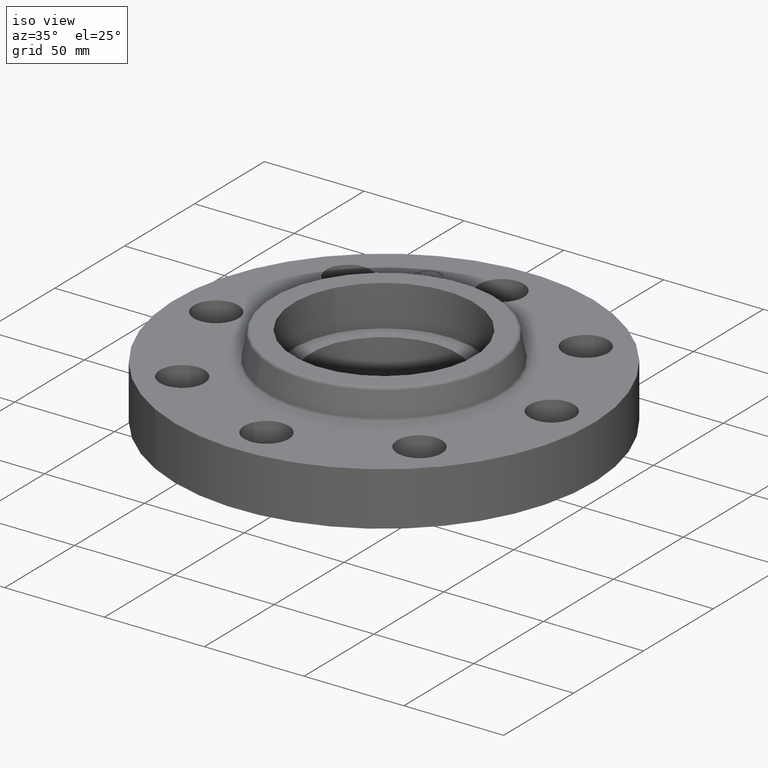
[diagram: clean part render]
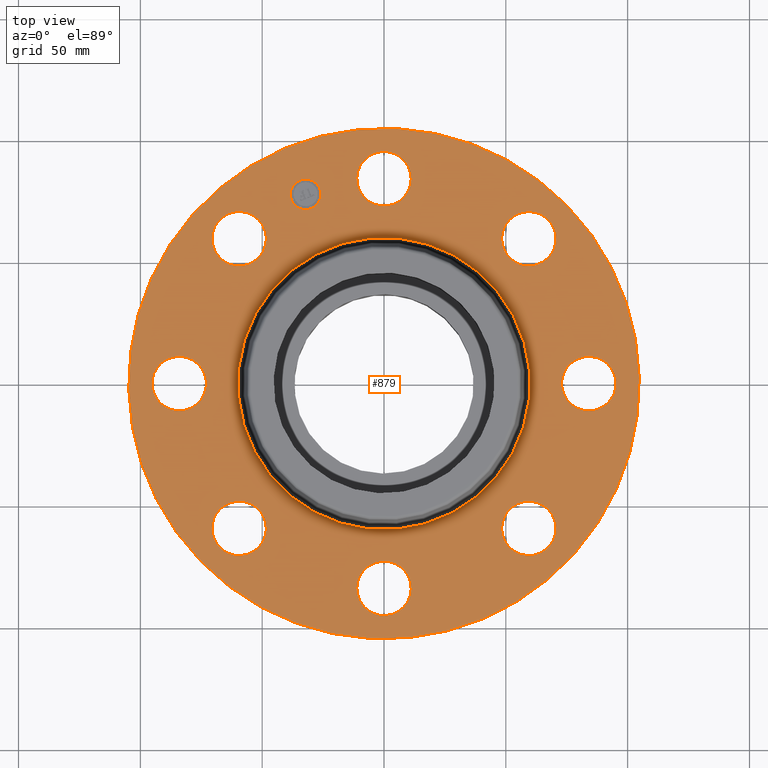
[diagram: tour spotlight — one face highlighted and labeled with its STEP entity id]
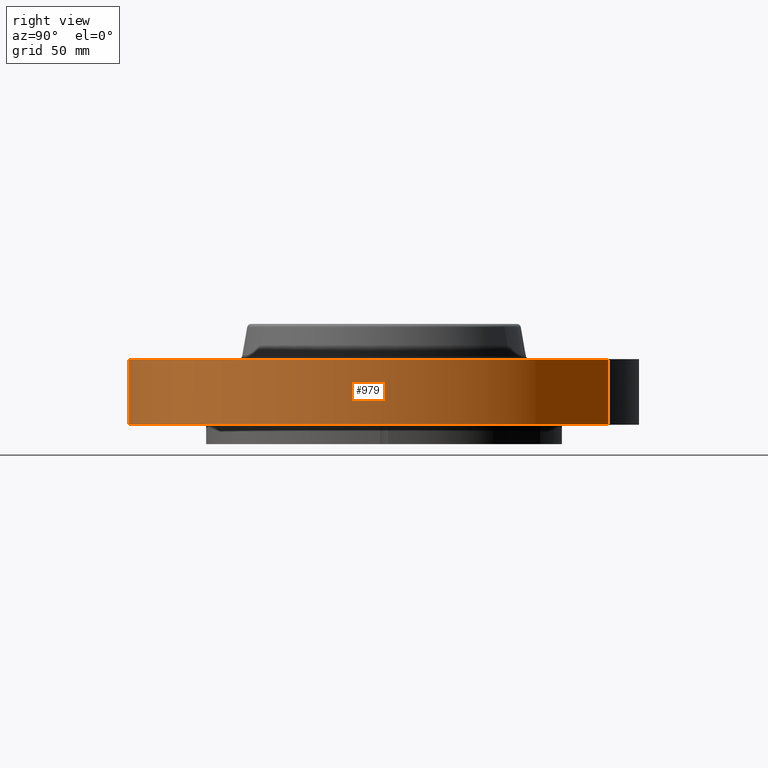
[diagram: tour spotlight — one face highlighted and labeled with its STEP entity id]
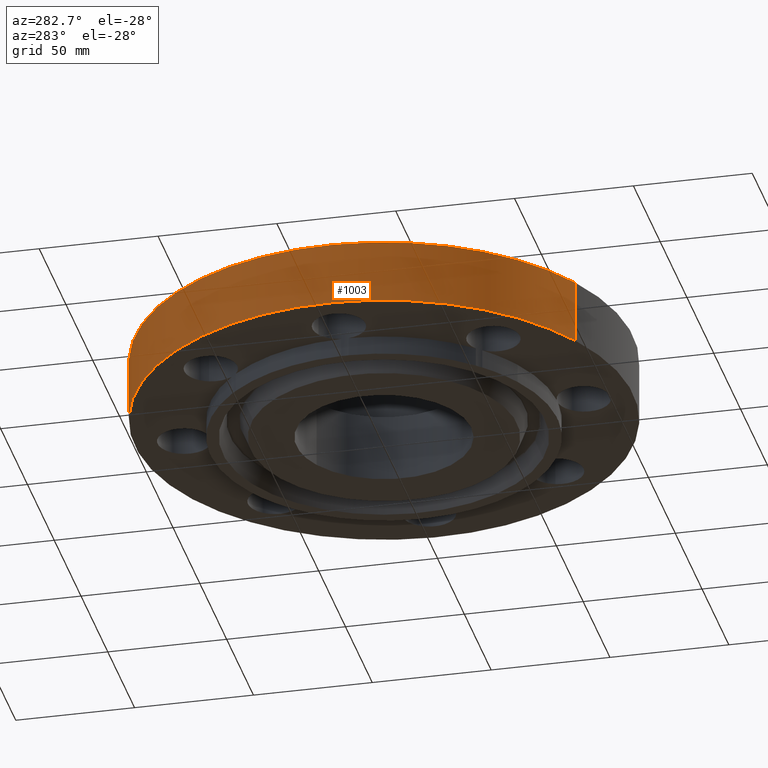
[diagram: tour spotlight — one face highlighted and labeled with its STEP entity id]
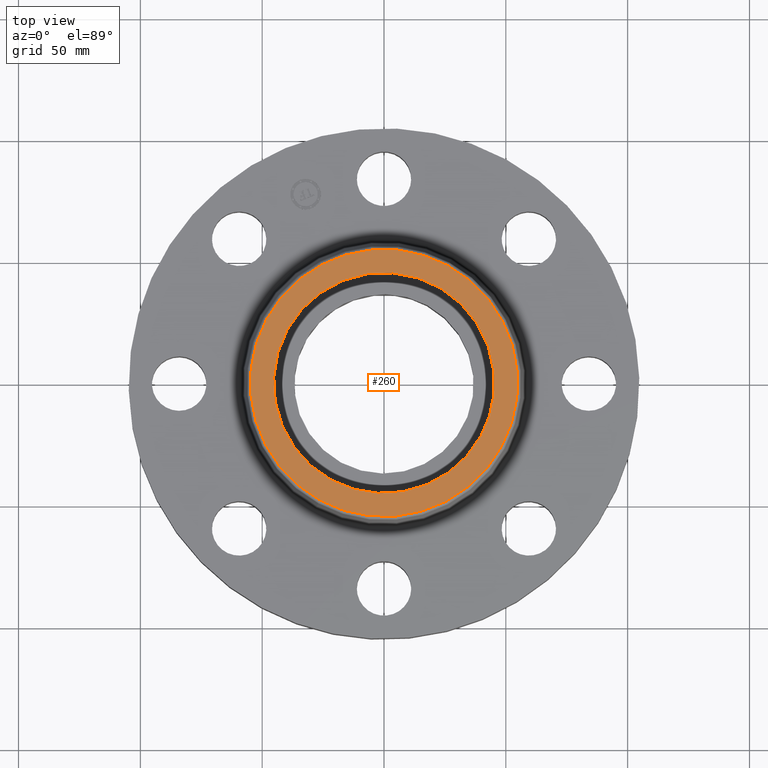
[diagram: tour spotlight — one face highlighted and labeled with its STEP entity id]
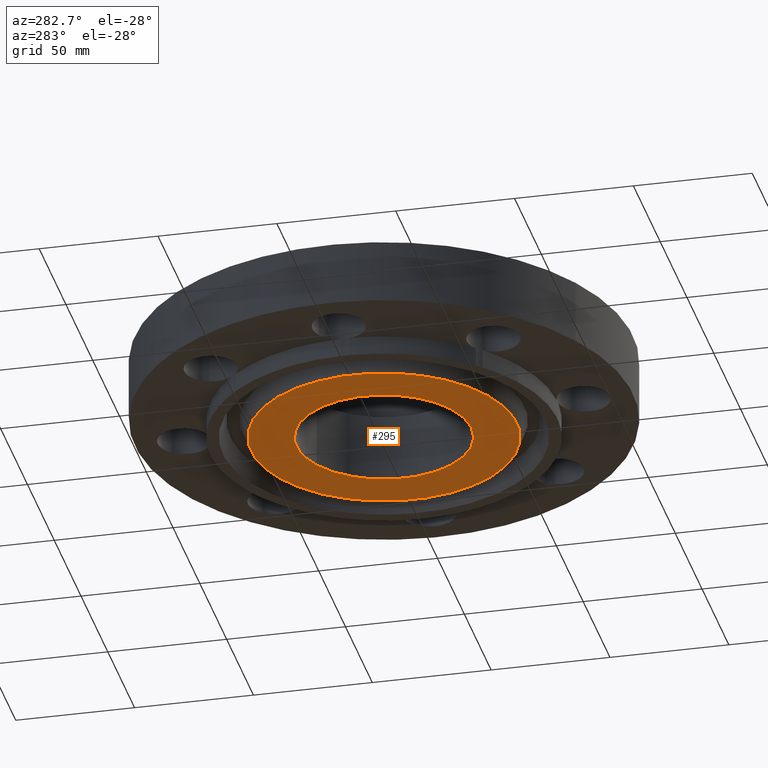
[diagram: tour spotlight — one face highlighted and labeled with its STEP entity id]
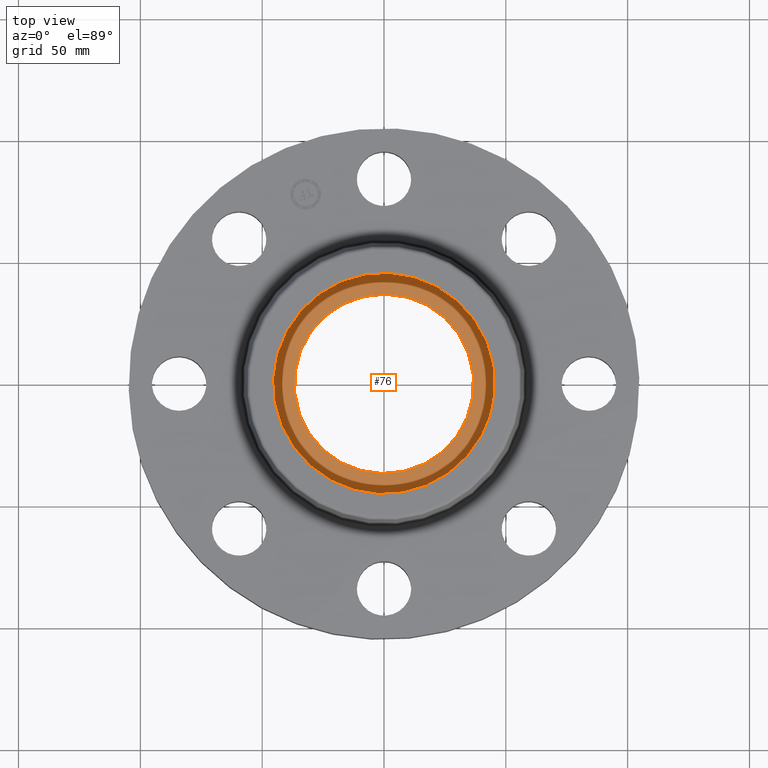
[diagram: tour spotlight — one face highlighted and labeled with its STEP entity id]
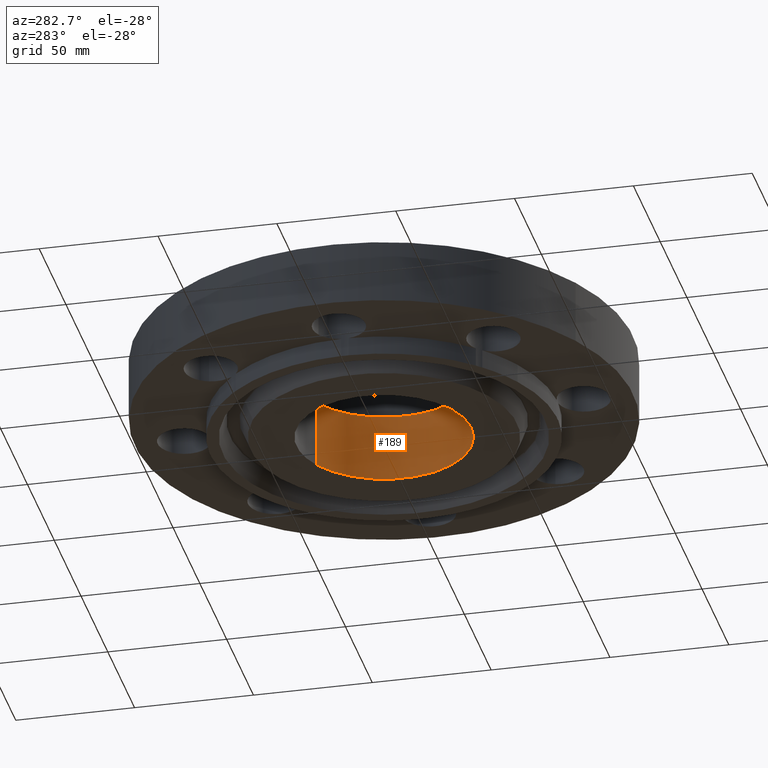
[diagram: tour spotlight — one face highlighted and labeled with its STEP entity id]
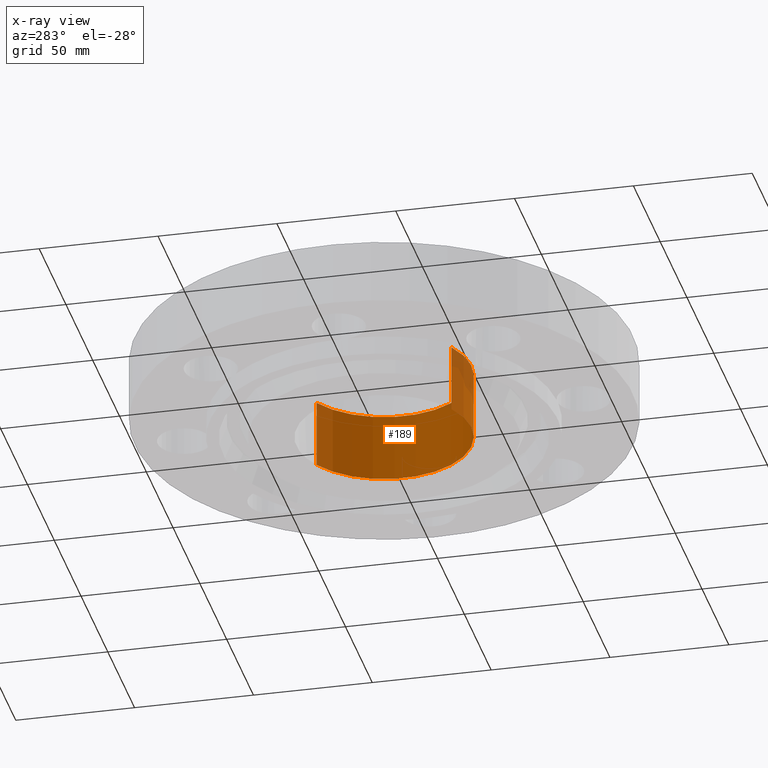
[diagram: x-ray of the same camera — body ghosted, this tour face saturated]
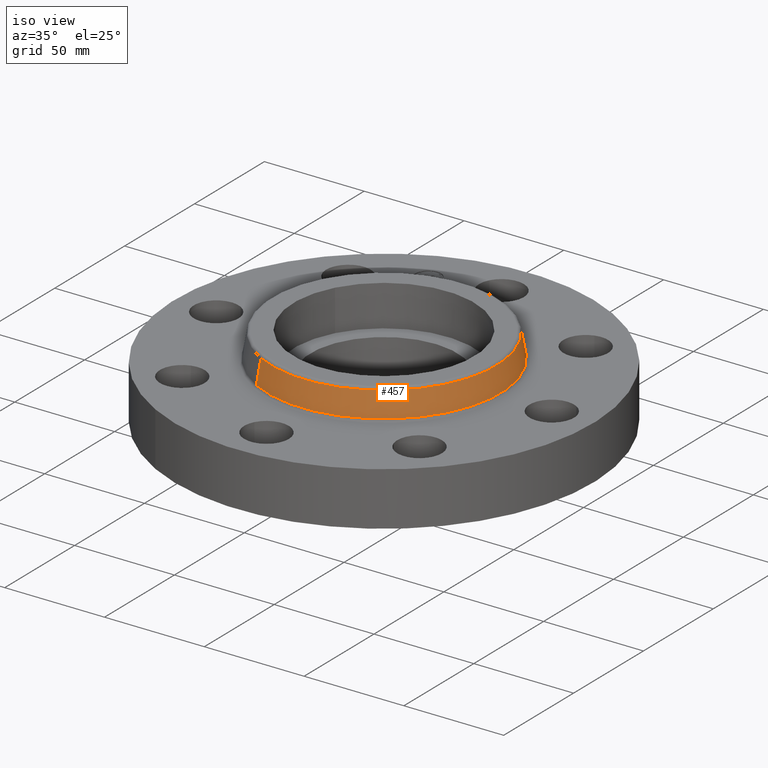
[diagram: tour spotlight — one face highlighted and labeled with its STEP entity id]
A machine part: a face-by-face anatomy tour. The part has 438 B-rep faces; the first image is the clean iso view, then the 8 largest visible faces are spotlighted one at a time (largest first), each with its STEP entity span.

Face 1 — top view, entity #879. In plain terms, the highlighted planar face has unit normal (0, 0, -1).
Definition (entity closure, byte-faithful):
#558=AXIS2_PLACEMENT_3D('Circle Axis2P3D',#556,#557,$) ;
#596=AXIS2_PLACEMENT_3D('Circle Axis2P3D',#594,#595,$) ;
#693=AXIS2_PLACEMENT_3D('Plane Axis2P3D',#690,#691,#692) ;
#697=AXIS2_PLACEMENT_3D('Circle Axis2P3D',#695,#696,$) ;
#706=AXIS2_PLACEMENT_3D('Circle Axis2P3D',#704,#705,$) ;
#715=AXIS2_PLACEMENT_3D('Circle Axis2P3D',#713,#714,$) ;
#724=AXIS2_PLACEMENT_3D('Circle Axis2P3D',#722,#723,$) ;
#737=AXIS2_PLACEMENT_3D('Circle Axis2P3D',#735,#736,$) ;
#746=AXIS2_PLACEMENT_3D('Circle Axis2P3D',#744,#745,$) ;
#755=AXIS2_PLACEMENT_3D('Circle Axis2P3D',#753,#754,$) ;
#764=AXIS2_PLACEMENT_3D('Circle Axis2P3D',#762,#763,$) ;
#773=AXIS2_PLACEMENT_3D('Circle Axis2P3D',#771,#772,$) ;
#782=AXIS2_PLACEMENT_3D('Circle Axis2P3D',#780,#781,$) ;
#791=AXIS2_PLACEMENT_3D('Circle Axis2P3D',#789,#790,$) ;
#800=AXIS2_PLACEMENT_3D('Circle Axis2P3D',#798,#799,$) ;
#809=AXIS2_PLACEMENT_3D('Circle Axis2P3D',#807,#808,$) ;
#818=AXIS2_PLACEMENT_3D('Circle Axis2P3D',#816,#817,$) ;
#827=AXIS2_PLACEMENT_3D('Circle Axis2P3D',#825,#826,$) ;
#836=AXIS2_PLACEMENT_3D('Circle Axis2P3D',#834,#835,$) ;
#845=AXIS2_PLACEMENT_3D('Circle Axis2P3D',#843,#844,$) ;
#854=AXIS2_PLACEMENT_3D('Circle Axis2P3D',#852,#853,$) ;
#863=AXIS2_PLACEMENT_3D('Circle Axis2P3D',#861,#862,$) ;
#872=AXIS2_PLACEMENT_3D('Circle Axis2P3D',#870,#871,$) ;
#556=CARTESIAN_POINT('Axis2P3D Location',(0.,0.,1.06)) ;
#560=CARTESIAN_POINT('Vertex',(1.13161014174,2.07139847022,1.06)) ;
#562=CARTESIAN_POINT('Vertex',(-1.13161014174,-2.07139847022,1.06)) ;
#594=CARTESIAN_POINT('Axis2P3D Location',(0.,0.,1.06)) ;
#690=CARTESIAN_POINT('Axis2P3D Location',(0.,4.12500000002,1.06)) ;
#695=CARTESIAN_POINT('Axis2P3D Location',(-1.1189649382E-015,5.33354637795E-012,1.06)) ;
#699=CARTESIAN_POINT('Vertex',(1.97763034678,3.62002806783,1.06)) ;
#701=CARTESIAN_POINT('Vertex',(-1.97763034675,-3.62002806781,1.06000000003)) ;
#704=CARTESIAN_POINT('Axis2P3D Location',(1.1189649382E-015,5.33466534289E-012,1.06)) ;
#713=CARTESIAN_POINT('Axis2P3D Location',(-6.99907323699E-012,3.30999999999,1.06)) ;
#717=CARTESIAN_POINT('Vertex',(-0.386136327233,3.520947237,1.05999999999)) ;
#719=CARTESIAN_POINT('Vertex',(0.386136327236,3.09905276303,1.05999999999)) ;
#722=CARTESIAN_POINT('Axis2P3D Location',(6.99907323699E-012,3.31000000002,1.06)) ;
#735=CARTESIAN_POINT('Axis2P3D Location',(2.34052344574,2.34052344574,1.06)) ;
#739=CARTESIAN_POINT('Vertex',(2.46440083947,1.91832160856,1.06)) ;
#741=CARTESIAN_POINT('Vertex',(2.21664605204,2.76272528294,1.05999999999)) ;
#744=CARTESIAN_POINT('Axis2P3D Location',(2.34052344574,2.34052344574,1.06)) ;
#753=CARTESIAN_POINT('Axis2P3D Location',(3.31000000001,-1.66501982805E-012,1.06)) ;
#757=CARTESIAN_POINT('Vertex',(3.09905276303,-0.386136327236,1.05999999999)) ;
#759=CARTESIAN_POINT('Vertex',(3.520947237,0.386136327233,1.05999999999)) ;
#762=CARTESIAN_POINT('Axis2P3D Location',(3.30999999999,1.23332315489E-011,1.06)) ;
#771=CARTESIAN_POINT('Axis2P3D Location',(2.34052344574,-2.34052344573,1.06)) ;
#775=CARTESIAN_POINT('Vertex',(1.91832160856,-2.46440083947,1.06)) ;
#777=CARTESIAN_POINT('Vertex',(2.76272528294,-2.21664605204,1.05999999999)) ;
#780=CARTESIAN_POINT('Axis2P3D Location',(2.34052344574,-2.34052344573,1.06)) ;
#789=CARTESIAN_POINT('Axis2P3D Location',(1.74838271595E-017,-3.31000000003,1.06)) ;
#793=CARTESIAN_POINT('Vertex',(-0.386136327236,-3.09905276303,1.05999999999)) ;
#795=CARTESIAN_POINT('Vertex',(0.386136327233,-3.520947237,1.05999999999)) ;
#798=CARTESIAN_POINT('Axis2P3D Location',(-1.74838271595E-017,-3.31000000003,1.06)) ;
#807=CARTESIAN_POINT('Axis2P3D Location',(-2.34052344576,-2.34052344574,1.06)) ;
#811=CARTESIAN_POINT('Vertex',(-2.46440083947,-1.91832160855,1.06)) ;
#813=CARTESIAN_POINT('Vertex',(-2.21664605204,-2.76272528294,1.05999999999)) ;
#816=CARTESIAN_POINT('Axis2P3D Location',(-2.34052344574,-2.34052344573,1.06)) ;
#825=CARTESIAN_POINT('Axis2P3D Location',(-3.31000000001,1.23332315489E-011,1.06)) ;
#829=CARTESIAN_POINT('Vertex',(-3.09905276303,0.386136327236,1.05999999999)) ;
#831=CARTESIAN_POINT('Vertex',(-3.520947237,-0.386136327233,1.05999999999)) ;
#834=CARTESIAN_POINT('Axis2P3D Location',(-3.30999999999,-1.66501982805E-012,1.06)) ;
#843=CARTESIAN_POINT('Axis2P3D Location',(-2.34052344574,2.34052344573,1.06)) ;
#847=CARTESIAN_POINT('Vertex',(-1.91832160856,2.4644008394,1.06)) ;
#849=CARTESIAN_POINT('Vertex',(-2.76272528294,2.21664605204,1.05999999999)) ;
#852=CARTESIAN_POINT('Axis2P3D Location',(-2.34052344575,2.34052344575,1.06)) ;
#861=CARTESIAN_POINT('Axis2P3D Location',(-1.26668216114,3.05804125265,1.06)) ;
#865=CARTESIAN_POINT('Vertex',(-1.49534234542,2.96332710313,1.06)) ;
#867=CARTESIAN_POINT('Vertex',(-1.03802197686,3.15275540217,1.06)) ;
#870=CARTESIAN_POINT('Axis2P3D Location',(-1.26668216112,3.05804125259,1.06)) ;
#557=DIRECTION('Axis2P3D Direction',(-0.,0.,-0.0393700787402)) ;
#595=DIRECTION('Axis2P3D Direction',(-0.,0.,-0.0393700787402)) ;
#691=DIRECTION('Axis2P3D Direction',(0.,0.,-0.0393700787402)) ;
#692=DIRECTION('Axis2P3D XDirection',(0.0393700787402,0.,0.)) ;
#696=DIRECTION('Axis2P3D Direction',(0.,0.,-0.0393700787402)) ;
#705=DIRECTION('Axis2P3D Direction',(0.,0.,-0.0393700787402)) ;
#714=DIRECTION('Axis2P3D Direction',(0.,0.,-0.0393700787402)) ;
#723=DIRECTION('Axis2P3D Direction',(0.,0.,-0.0393700787402)) ;
#736=DIRECTION('Axis2P3D Direction',(0.,0.,-0.0393700787402)) ;
#745=DIRECTION('Axis2P3D Direction',(0.,0.,-0.0393700787402)) ;
#754=DIRECTION('Axis2P3D Direction',(0.,0.,-0.0393700787402)) ;
#763=DIRECTION('Axis2P3D Direction',(0.,0.,-0.0393700787402)) ;
#772=DIRECTION('Axis2P3D Direction',(0.,0.,-0.0393700787402)) ;
#781=DIRECTION('Axis2P3D Direction',(0.,0.,-0.0393700787402)) ;
#790=DIRECTION('Axis2P3D Direction',(0.,0.,-0.0393700787402)) ;
#799=DIRECTION('Axis2P3D Direction',(0.,0.,-0.0393700787402)) ;
#808=DIRECTION('Axis2P3D Direction',(0.,0.,-0.0393700787402)) ;
#817=DIRECTION('Axis2P3D Direction',(0.,0.,-0.0393700787402)) ;
#826=DIRECTION('Axis2P3D Direction',(0.,0.,-0.0393700787402)) ;
#835=DIRECTION('Axis2P3D Direction',(0.,0.,-0.0393700787402)) ;
#844=DIRECTION('Axis2P3D Direction',(0.,0.,-0.0393700787402)) ;
#853=DIRECTION('Axis2P3D Direction',(0.,0.,-0.0393700787402)) ;
#862=DIRECTION('Axis2P3D Direction',(0.,0.,-0.0393700787402)) ;
#871=DIRECTION('Axis2P3D Direction',(0.,0.,-0.0393700787402)) ;
#710=ORIENTED_EDGE('',*,*,#703,.F.) ;
#711=ORIENTED_EDGE('',*,*,#708,.F.) ;
#728=ORIENTED_EDGE('',*,*,#721,.T.) ;
#729=ORIENTED_EDGE('',*,*,#726,.T.) ;
#732=ORIENTED_EDGE('',*,*,#598,.T.) ;
#733=ORIENTED_EDGE('',*,*,#564,.T.) ;
#750=ORIENTED_EDGE('',*,*,#743,.T.) ;
#751=ORIENTED_EDGE('',*,*,#748,.T.) ;
#768=ORIENTED_EDGE('',*,*,#761,.T.) ;
#769=ORIENTED_EDGE('',*,*,#766,.T.) ;
#786=ORIENTED_EDGE('',*,*,#779,.T.) ;
#787=ORIENTED_EDGE('',*,*,#784,.T.) ;
#804=ORIENTED_EDGE('',*,*,#797,.T.) ;
#805=ORIENTED_EDGE('',*,*,#802,.T.) ;
#822=ORIENTED_EDGE('',*,*,#815,.T.) ;
#823=ORIENTED_EDGE('',*,*,#820,.T.) ;
#840=ORIENTED_EDGE('',*,*,#833,.T.) ;
#841=ORIENTED_EDGE('',*,*,#838,.T.) ;
#858=ORIENTED_EDGE('',*,*,#851,.T.) ;
#859=ORIENTED_EDGE('',*,*,#856,.T.) ;
#876=ORIENTED_EDGE('',*,*,#869,.T.) ;
#877=ORIENTED_EDGE('',*,*,#874,.T.) ;
#730=FACE_BOUND('',#727,.T.) ;
#734=FACE_BOUND('',#731,.T.) ;
#752=FACE_BOUND('',#749,.T.) ;
#770=FACE_BOUND('',#767,.T.) ;
#788=FACE_BOUND('',#785,.T.) ;
#806=FACE_BOUND('',#803,.T.) ;
#824=FACE_BOUND('',#821,.T.) ;
#842=FACE_BOUND('',#839,.T.) ;
#860=FACE_BOUND('',#857,.T.) ;
#878=FACE_BOUND('',#875,.T.) ;
#879=ADVANCED_FACE('PartBody',(#712,#730,#734,#752,#770,#788,#806,#824,#842,#860,#878),#694,.F.) ;
#559=CIRCLE('generated circle',#558,2.36034597788) ;
#597=CIRCLE('generated circle',#596,2.36034597788) ;
#698=CIRCLE('generated circle',#697,4.12500000004) ;
#707=CIRCLE('generated circle',#706,4.12500000004) ;
#716=CIRCLE('generated circle',#715,0.440000000002) ;
#725=CIRCLE('generated circle',#724,0.440000000002) ;
#738=CIRCLE('generated circle',#737,0.439999999995) ;
#747=CIRCLE('generated circle',#746,0.439999999995) ;
#756=CIRCLE('generated circle',#755,0.440000000002) ;
#765=CIRCLE('generated circle',#764,0.440000000002) ;
#774=CIRCLE('generated circle',#773,0.439999999995) ;
#783=CIRCLE('generated circle',#782,0.439999999995) ;
#792=CIRCLE('generated circle',#791,0.44000000002) ;
#801=CIRCLE('generated circle',#800,0.44000000002) ;
#810=CIRCLE('generated circle',#809,0.439999999995) ;
#819=CIRCLE('generated circle',#818,0.439999999995) ;
#828=CIRCLE('generated circle',#827,0.440000000002) ;
#837=CIRCLE('generated circle',#836,0.440000000002) ;
#846=CIRCLE('generated circle',#845,0.439999999984) ;
#855=CIRCLE('generated circle',#854,0.439999999984) ;
#864=CIRCLE('generated circle',#863,0.247499999989) ;
#873=CIRCLE('generated circle',#872,0.247499999989) ;
#564=EDGE_CURVE('',#561,#563,#559,.T.) ;
#598=EDGE_CURVE('',#563,#561,#597,.T.) ;
#703=EDGE_CURVE('',#700,#702,#698,.T.) ;
#708=EDGE_CURVE('',#702,#700,#707,.T.) ;
#721=EDGE_CURVE('',#718,#720,#716,.T.) ;
#726=EDGE_CURVE('',#720,#718,#725,.T.) ;
#743=EDGE_CURVE('',#740,#742,#738,.T.) ;
#748=EDGE_CURVE('',#742,#740,#747,.T.) ;
#761=EDGE_CURVE('',#758,#760,#756,.T.) ;
#766=EDGE_CURVE('',#760,#758,#765,.T.) ;
#779=EDGE_CURVE('',#776,#778,#774,.T.) ;
#784=EDGE_CURVE('',#778,#776,#783,.T.) ;
#797=EDGE_CURVE('',#794,#796,#792,.T.) ;
#802=EDGE_CURVE('',#796,#794,#801,.T.) ;
#815=EDGE_CURVE('',#812,#814,#810,.T.) ;
#820=EDGE_CURVE('',#814,#812,#819,.T.) ;
#833=EDGE_CURVE('',#830,#832,#828,.T.) ;
#838=EDGE_CURVE('',#832,#830,#837,.T.) ;
#851=EDGE_CURVE('',#848,#850,#846,.T.) ;
#856=EDGE_CURVE('',#850,#848,#855,.T.) ;
#869=EDGE_CURVE('',#866,#868,#864,.T.) ;
#874=EDGE_CURVE('',#868,#866,#873,.T.) ;
#709=EDGE_LOOP('',(#710,#711)) ;
#727=EDGE_LOOP('',(#728,#729)) ;
#731=EDGE_LOOP('',(#732,#733)) ;
#749=EDGE_LOOP('',(#750,#751)) ;
#767=EDGE_LOOP('',(#768,#769)) ;
#785=EDGE_LOOP('',(#786,#787)) ;
#803=EDGE_LOOP('',(#804,#805)) ;
#821=EDGE_LOOP('',(#822,#823)) ;
#839=EDGE_LOOP('',(#840,#841)) ;
#857=EDGE_LOOP('',(#858,#859)) ;
#875=EDGE_LOOP('',(#876,#877)) ;
#712=FACE_OUTER_BOUND('',#709,.T.) ;
#694=PLANE('',#693) ;
#561=VERTEX_POINT('',#560) ;
#563=VERTEX_POINT('',#562) ;
#700=VERTEX_POINT('',#699) ;
#702=VERTEX_POINT('',#701) ;
#718=VERTEX_POINT('',#717) ;
#720=VERTEX_POINT('',#719) ;
#740=VERTEX_POINT('',#739) ;
#742=VERTEX_POINT('',#741) ;
#758=VERTEX_POINT('',#757) ;
#760=VERTEX_POINT('',#759) ;
#776=VERTEX_POINT('',#775) ;
#778=VERTEX_POINT('',#777) ;
#794=VERTEX_POINT('',#793) ;
#796=VERTEX_POINT('',#795) ;
#812=VERTEX_POINT('',#811) ;
#814=VERTEX_POINT('',#813) ;
#830=VERTEX_POINT('',#829) ;
#832=VERTEX_POINT('',#831) ;
#848=VERTEX_POINT('',#847) ;
#850=VERTEX_POINT('',#849) ;
#866=VERTEX_POINT('',#865) ;
#868=VERTEX_POINT('',#867) ;

Face 2 — right view, entity #979. In plain terms, the highlighted cylindrical surface (partial cylindrical patch) has radius 104.775 mm, axis along (0, 0, -1).
Definition (entity closure, byte-faithful):
#697=AXIS2_PLACEMENT_3D('Circle Axis2P3D',#695,#696,$) ;
#952=AXIS2_PLACEMENT_3D('Cylinder Axis2P3D',#949,#950,#951) ;
#956=AXIS2_PLACEMENT_3D('Circle Axis2P3D',#954,#955,$) ;
#695=CARTESIAN_POINT('Axis2P3D Location',(-1.1189649382E-015,5.33354637795E-012,1.06)) ;
#699=CARTESIAN_POINT('Vertex',(1.97763034678,3.62002806783,1.06)) ;
#701=CARTESIAN_POINT('Vertex',(-1.97763034675,-3.62002806781,1.06000000003)) ;
#949=CARTESIAN_POINT('Axis2P3D Location',(0.,0.,0.658500000003)) ;
#954=CARTESIAN_POINT('Axis2P3D Location',(0.,0.,4.5250942101E-012)) ;
#958=CARTESIAN_POINT('Vertex',(1.97763034678,3.62002806782,0.)) ;
#960=CARTESIAN_POINT('Vertex',(-1.97763034678,-3.62002806782,0.)) ;
#963=CARTESIAN_POINT('Line Origine',(1.97763034675,3.62002806781,0.530000000016)) ;
#968=CARTESIAN_POINT('Line Origine',(-1.97763034675,-3.62002806781,0.530000000016)) ;
#696=DIRECTION('Axis2P3D Direction',(0.,0.,-0.0393700787402)) ;
#950=DIRECTION('Axis2P3D Direction',(0.,0.,-0.0393700787402)) ;
#951=DIRECTION('Axis2P3D XDirection',(0.0188750212049,0.0345504945626,0.)) ;
#955=DIRECTION('Axis2P3D Direction',(0.,0.,-0.0393700787402)) ;
#964=DIRECTION('Vector Direction',(0.,0.,-0.0393700787402)) ;
#969=DIRECTION('Vector Direction',(0.,0.,-0.0393700787402)) ;
#965=VECTOR('Line Direction',#964,0.0393700787402) ;
#970=VECTOR('Line Direction',#969,0.0393700787402) ;
#974=ORIENTED_EDGE('',*,*,#962,.F.) ;
#975=ORIENTED_EDGE('',*,*,#967,.T.) ;
#976=ORIENTED_EDGE('',*,*,#703,.T.) ;
#977=ORIENTED_EDGE('',*,*,#972,.F.) ;
#979=ADVANCED_FACE('PartBody',(#978),#953,.T.) ;
#698=CIRCLE('generated circle',#697,4.12500000004) ;
#957=CIRCLE('generated circle',#956,4.12500000002) ;
#953=CYLINDRICAL_SURFACE('generated cylinder',#952,4.12500000002) ;
#703=EDGE_CURVE('',#700,#702,#698,.T.) ;
#962=EDGE_CURVE('',#959,#961,#957,.T.) ;
#967=EDGE_CURVE('',#959,#700,#966,.F.) ;
#972=EDGE_CURVE('',#961,#702,#971,.F.) ;
#973=EDGE_LOOP('',(#974,#975,#976,#977)) ;
#978=FACE_OUTER_BOUND('',#973,.T.) ;
#966=LINE('Line',#963,#965) ;
#971=LINE('Line',#968,#970) ;
#700=VERTEX_POINT('',#699) ;
#702=VERTEX_POINT('',#701) ;
#959=VERTEX_POINT('',#958) ;
#961=VERTEX_POINT('',#960) ;

Face 3 — auxiliary view, entity #1003. In plain terms, the highlighted cylindrical surface (partial cylindrical patch) has radius 104.775 mm, axis along (0, 0, -1).
Definition (entity closure, byte-faithful):
#706=AXIS2_PLACEMENT_3D('Circle Axis2P3D',#704,#705,$) ;
#990=AXIS2_PLACEMENT_3D('Cylinder Axis2P3D',#987,#988,#989) ;
#994=AXIS2_PLACEMENT_3D('Circle Axis2P3D',#992,#993,$) ;
#699=CARTESIAN_POINT('Vertex',(1.97763034678,3.62002806783,1.06)) ;
#701=CARTESIAN_POINT('Vertex',(-1.97763034675,-3.62002806781,1.06000000003)) ;
#704=CARTESIAN_POINT('Axis2P3D Location',(1.1189649382E-015,5.33466534289E-012,1.06)) ;
#958=CARTESIAN_POINT('Vertex',(1.97763034678,3.62002806782,0.)) ;
#960=CARTESIAN_POINT('Vertex',(-1.97763034678,-3.62002806782,0.)) ;
#963=CARTESIAN_POINT('Line Origine',(1.97763034675,3.62002806781,0.530000000016)) ;
#968=CARTESIAN_POINT('Line Origine',(-1.97763034675,-3.62002806781,0.530000000016)) ;
#987=CARTESIAN_POINT('Axis2P3D Location',(0.,0.,0.658500000003)) ;
#992=CARTESIAN_POINT('Axis2P3D Location',(0.,0.,4.19611851827E-016)) ;
#705=DIRECTION('Axis2P3D Direction',(0.,0.,-0.0393700787402)) ;
#964=DIRECTION('Vector Direction',(0.,0.,-0.0393700787402)) ;
#969=DIRECTION('Vector Direction',(0.,0.,-0.0393700787402)) ;
#988=DIRECTION('Axis2P3D Direction',(0.,0.,-0.0393700787402)) ;
#989=DIRECTION('Axis2P3D XDirection',(-0.0188750212049,-0.0345504945626,0.)) ;
#993=DIRECTION('Axis2P3D Direction',(0.,0.,-0.0393700787402)) ;
#965=VECTOR('Line Direction',#964,0.0393700787402) ;
#970=VECTOR('Line Direction',#969,0.0393700787402) ;
#998=ORIENTED_EDGE('',*,*,#996,.F.) ;
#999=ORIENTED_EDGE('',*,*,#972,.T.) ;
#1000=ORIENTED_EDGE('',*,*,#708,.T.) ;
#1001=ORIENTED_EDGE('',*,*,#967,.F.) ;
#1003=ADVANCED_FACE('PartBody',(#1002),#991,.T.) ;
#707=CIRCLE('generated circle',#706,4.12500000004) ;
#995=CIRCLE('generated circle',#994,4.12500000002) ;
#991=CYLINDRICAL_SURFACE('generated cylinder',#990,4.12500000002) ;
#708=EDGE_CURVE('',#702,#700,#707,.T.) ;
#967=EDGE_CURVE('',#959,#700,#966,.F.) ;
#972=EDGE_CURVE('',#961,#702,#971,.F.) ;
#996=EDGE_CURVE('',#961,#959,#995,.T.) ;
#997=EDGE_LOOP('',(#998,#999,#1000,#1001)) ;
#1002=FACE_OUTER_BOUND('',#997,.T.) ;
#966=LINE('Line',#963,#965) ;
#971=LINE('Line',#968,#970) ;
#700=VERTEX_POINT('',#699) ;
#702=VERTEX_POINT('',#701) ;
#959=VERTEX_POINT('',#958) ;
#961=VERTEX_POINT('',#960) ;

Face 4 — top view, entity #260. In plain terms, the highlighted planar face has unit normal (0, 0, -1).
Definition (entity closure, byte-faithful):
#142=AXIS2_PLACEMENT_3D('Circle Axis2P3D',#140,#141,$) ;
#236=AXIS2_PLACEMENT_3D('Plane Axis2P3D',#233,#234,#235) ;
#240=AXIS2_PLACEMENT_3D('Circle Axis2P3D',#238,#239,$) ;
#249=AXIS2_PLACEMENT_3D('Circle Axis2P3D',#247,#248,$) ;
#91=CARTESIAN_POINT('Control Point',(-1.56648487298,0.855774586414,1.63000000001)) ;
#92=CARTESIAN_POINT('Control Point',(-1.43206011529,1.10183745486,1.63000000001)) ;
#93=CARTESIAN_POINT('Control Point',(-1.24932102636,1.32150608385,1.63000000001)) ;
#94=CARTESIAN_POINT('Control Point',(-1.02513897874,1.50208902228,1.63000000001)) ;
#95=CARTESIAN_POINT('Control Point',(-0.51804790864,1.76562302648,1.63)) ;
#96=CARTESIAN_POINT('Control Point',(0.051042543653,1.81784928289,1.63)) ;
#97=CARTESIAN_POINT('Control Point',(0.33725461007,1.78702005712,1.63)) ;
#98=CARTESIAN_POINT('Control Point',(0.882168825865,1.61479920422,1.63)) ;
#99=CARTESIAN_POINT('Control Point',(1.32150608385,1.24932102636,1.63)) ;
#100=CARTESIAN_POINT('Control Point',(1.50208902228,1.02513897874,1.63)) ;
#101=CARTESIAN_POINT('Control Point',(1.76562302648,0.51804790864,1.62999999999)) ;
#102=CARTESIAN_POINT('Control Point',(1.81784928289,-0.0510425436528,1.62999999999)) ;
#103=CARTESIAN_POINT('Control Point',(1.78702005712,-0.33725461007,1.62999999999)) ;
#104=CARTESIAN_POINT('Control Point',(1.70090963067,-0.609711717967,1.62999999999)) ;
#105=CARTESIAN_POINT('Control Point',(1.56648487298,-0.855774586414,1.62999999999)) ;
#106=CARTESIAN_POINT('Vertex',(-1.566484873,0.85577458638,1.63000000001)) ;
#108=CARTESIAN_POINT('Vertex',(1.566484873,-0.855774586384,1.63000000001)) ;
#140=CARTESIAN_POINT('Axis2P3D Location',(1.04902962957E-016,-6.99353086378E-017,1.62999999999)) ;
#233=CARTESIAN_POINT('Axis2P3D Location',(0.,2.15914764313,1.63000000001)) ;
#238=CARTESIAN_POINT('Axis2P3D Location',(4.36653687836E-011,-2.60338382523E-011,1.63000000001)) ;
#242=CARTESIAN_POINT('Vertex',(1.03515052174,1.89483032016,1.63000000001)) ;
#244=CARTESIAN_POINT('Vertex',(-1.03515052173,-1.89483032016,1.63000000001)) ;
#247=CARTESIAN_POINT('Axis2P3D Location',(-4.36653687836E-011,2.1675469818E-011,1.63000000001)) ;
#141=DIRECTION('Axis2P3D Direction',(0.,0.,-0.0393700787402)) ;
#234=DIRECTION('Axis2P3D Direction',(0.,0.,-0.0393700787402)) ;
#235=DIRECTION('Axis2P3D XDirection',(0.0393700787402,0.,0.)) ;
#239=DIRECTION('Axis2P3D Direction',(0.,0.,-0.0393700787402)) ;
#248=DIRECTION('Axis2P3D Direction',(0.,0.,-0.0393700787402)) ;
#253=ORIENTED_EDGE('',*,*,#246,.F.) ;
#254=ORIENTED_EDGE('',*,*,#251,.F.) ;
#257=ORIENTED_EDGE('',*,*,#110,.T.) ;
#258=ORIENTED_EDGE('',*,*,#144,.T.) ;
#259=FACE_BOUND('',#256,.T.) ;
#260=ADVANCED_FACE('PartBody',(#255,#259),#237,.F.) ;
#90=B_SPLINE_CURVE_WITH_KNOTS('',5,(#91,#92,#93,#94,#95,#96,#97,#98,#99,#100,#101,#102,#103,#104,#105),.UNSPECIFIED.,.F.,.U.,(6,3,3,3,6),(-71.2183346609,-35.6091673305,7.1054273576E-015,35.6091673305,71.2183346609),.UNSPECIFIED.) ;
#143=CIRCLE('generated circle',#142,1.78500000001) ;
#241=CIRCLE('generated circle',#240,2.15914764311) ;
#250=CIRCLE('generated circle',#249,2.15914764311) ;
#110=EDGE_CURVE('',#107,#109,#90,.T.) ;
#144=EDGE_CURVE('',#109,#107,#143,.T.) ;
#246=EDGE_CURVE('',#243,#245,#241,.T.) ;
#251=EDGE_CURVE('',#245,#243,#250,.T.) ;
#252=EDGE_LOOP('',(#253,#254)) ;
#256=EDGE_LOOP('',(#257,#258)) ;
#255=FACE_OUTER_BOUND('',#252,.T.) ;
#237=PLANE('',#236) ;
#107=VERTEX_POINT('',#106) ;
#109=VERTEX_POINT('',#108) ;
#243=VERTEX_POINT('',#242) ;
#245=VERTEX_POINT('',#244) ;

Face 5 — auxiliary view, entity #295. In plain terms, the highlighted planar face has unit normal (0, 0, -1).
Definition (entity closure, byte-faithful):
#173=AXIS2_PLACEMENT_3D('Circle Axis2P3D',#171,#172,$) ;
#271=AXIS2_PLACEMENT_3D('Plane Axis2P3D',#268,#269,#270) ;
#275=AXIS2_PLACEMENT_3D('Circle Axis2P3D',#273,#274,$) ;
#284=AXIS2_PLACEMENT_3D('Circle Axis2P3D',#282,#283,$) ;
#168=CARTESIAN_POINT('Vertex',(0.695167030981,1.27249471475,-0.313000000026)) ;
#171=CARTESIAN_POINT('Axis2P3D Location',(0.,0.,-0.313000000026)) ;
#175=CARTESIAN_POINT('Vertex',(-0.695167030978,-1.27249471476,-0.313000000001)) ;
#203=CARTESIAN_POINT('Control Point',(-0.695167030981,-1.27249471475,-0.313000000001)) ;
#204=CARTESIAN_POINT('Control Point',(-0.895050033361,-1.16329813287,-0.313000000002)) ;
#205=CARTESIAN_POINT('Control Point',(-1.07349233703,-1.01485461525,-0.313000000004)) ;
#206=CARTESIAN_POINT('Control Point',(-1.22018435983,-0.832745949119,-0.313000000005)) ;
#207=CARTESIAN_POINT('Control Point',(-1.43425960134,-0.420823231109,-0.313000000007)) ;
#208=CARTESIAN_POINT('Control Point',(-1.47668429143,0.0414631306978,-0.31300000001)) ;
#209=CARTESIAN_POINT('Control Point',(-1.45164094276,0.273960327508,-0.313000000011)) ;
#210=CARTESIAN_POINT('Control Point',(-1.31174165049,0.716607729694,-0.313000000014)) ;
#211=CARTESIAN_POINT('Control Point',(-1.01485461525,1.07349233703,-0.313000000016)) ;
#212=CARTESIAN_POINT('Control Point',(-0.83274594912,1.22018435983,-0.313000000017)) ;
#213=CARTESIAN_POINT('Control Point',(-0.42082323111,1.43425960134,-0.31300000002)) ;
#214=CARTESIAN_POINT('Control Point',(0.0414631306966,1.47668429143,-0.313000000022)) ;
#215=CARTESIAN_POINT('Control Point',(0.273960327506,1.45164094276,-0.313000000024)) ;
#216=CARTESIAN_POINT('Control Point',(0.4952840286,1.38169129663,-0.313000000025)) ;
#217=CARTESIAN_POINT('Control Point',(0.695167030979,1.27249471475,-0.313000000026)) ;
#268=CARTESIAN_POINT('Axis2P3D Location',(0.,1.45000000001,-0.313000000001)) ;
#273=CARTESIAN_POINT('Axis2P3D Location',(6.99353086378E-017,7.06710280847E-012,-0.313000000001)) ;
#277=CARTESIAN_POINT('Vertex',(-1.05617446158,1.93331438389,-0.313000000001)) ;
#279=CARTESIAN_POINT('Vertex',(1.05617446158,-1.93331438387,-0.313000000001)) ;
#282=CARTESIAN_POINT('Axis2P3D Location',(-6.99353086378E-017,7.066543326E-012,-0.313000000001)) ;
#172=DIRECTION('Axis2P3D Direction',(0.,0.,-0.0393700787402)) ;
#269=DIRECTION('Axis2P3D Direction',(0.,0.,-0.0393700787402)) ;
#270=DIRECTION('Axis2P3D XDirection',(0.0393700787402,0.,0.)) ;
#274=DIRECTION('Axis2P3D Direction',(0.,0.,-0.0393700787402)) ;
#283=DIRECTION('Axis2P3D Direction',(0.,0.,-0.0393700787402)) ;
#288=ORIENTED_EDGE('',*,*,#281,.T.) ;
#289=ORIENTED_EDGE('',*,*,#286,.T.) ;
#292=ORIENTED_EDGE('',*,*,#177,.F.) ;
#293=ORIENTED_EDGE('',*,*,#218,.F.) ;
#294=FACE_BOUND('',#291,.T.) ;
#295=ADVANCED_FACE('PartBody',(#290,#294),#272,.T.) ;
#202=B_SPLINE_CURVE_WITH_KNOTS('',5,(#203,#204,#205,#206,#207,#208,#209,#210,#211,#212,#213,#214,#215,#216,#217),.UNSPECIFIED.,.F.,.U.,(6,3,3,3,6),(-57.8524287162,-28.9262143581,0.,28.9262143581,57.8524287162),.UNSPECIFIED.) ;
#174=CIRCLE('generated circle',#173,1.45000000001) ;
#276=CIRCLE('generated circle',#275,2.20300000005) ;
#285=CIRCLE('generated circle',#284,2.20300000005) ;
#177=EDGE_CURVE('',#169,#176,#174,.T.) ;
#218=EDGE_CURVE('',#176,#169,#202,.T.) ;
#281=EDGE_CURVE('',#278,#280,#276,.T.) ;
#286=EDGE_CURVE('',#280,#278,#285,.T.) ;
#287=EDGE_LOOP('',(#288,#289)) ;
#291=EDGE_LOOP('',(#292,#293)) ;
#290=FACE_OUTER_BOUND('',#287,.T.) ;
#272=PLANE('',#271) ;
#169=VERTEX_POINT('',#168) ;
#176=VERTEX_POINT('',#175) ;
#278=VERTEX_POINT('',#277) ;
#280=VERTEX_POINT('',#279) ;

Face 6 — top view, entity #76. In plain terms, the highlighted planar face has unit normal (0, 0, -1).
Definition (entity closure, byte-faithful):
#38=AXIS2_PLACEMENT_3D('Plane Axis2P3D',#35,#36,#37) ;
#42=AXIS2_PLACEMENT_3D('Circle Axis2P3D',#40,#41,$) ;
#51=AXIS2_PLACEMENT_3D('Circle Axis2P3D',#49,#50,$) ;
#60=AXIS2_PLACEMENT_3D('Circle Axis2P3D',#58,#59,$) ;
#69=AXIS2_PLACEMENT_3D('Circle Axis2P3D',#67,#68,$) ;
#35=CARTESIAN_POINT('Axis2P3D Location',(1.04902962957E-016,-6.99353086378E-017,0.820000000003)) ;
#40=CARTESIAN_POINT('Axis2P3D Location',(3.1470888887E-016,-9.09159012291E-016,0.820000000003)) ;
#44=CARTESIAN_POINT('Vertex',(-1.566484873,0.855774586419,0.820000000003)) ;
#46=CARTESIAN_POINT('Vertex',(1.566484873,-0.855774586419,0.820000000003)) ;
#49=CARTESIAN_POINT('Axis2P3D Location',(-1.04902962956E-016,7.69288395016E-016,0.820000000003)) ;
#58=CARTESIAN_POINT('Axis2P3D Location',(1.04902962957E-016,-6.99353086378E-017,0.820000000003)) ;
#62=CARTESIAN_POINT('Vertex',(0.695167030978,1.27249471477,0.820000000003)) ;
#64=CARTESIAN_POINT('Vertex',(-0.695167030978,-1.27249471477,0.820000000003)) ;
#67=CARTESIAN_POINT('Axis2P3D Location',(1.04902962957E-016,-6.99353086378E-017,0.820000000003)) ;
#36=DIRECTION('Axis2P3D Direction',(0.,0.,-0.0393700787402)) ;
#37=DIRECTION('Axis2P3D XDirection',(0.0393700787402,0.,0.)) ;
#41=DIRECTION('Axis2P3D Direction',(0.,0.,-0.0393700787402)) ;
#50=DIRECTION('Axis2P3D Direction',(0.,0.,-0.0393700787402)) ;
#59=DIRECTION('Axis2P3D Direction',(0.,0.,-0.0393700787402)) ;
#68=DIRECTION('Axis2P3D Direction',(0.,0.,-0.0393700787402)) ;
#55=ORIENTED_EDGE('',*,*,#48,.F.) ;
#56=ORIENTED_EDGE('',*,*,#53,.F.) ;
#73=ORIENTED_EDGE('',*,*,#66,.T.) ;
#74=ORIENTED_EDGE('',*,*,#71,.T.) ;
#75=FACE_BOUND('',#72,.T.) ;
#76=ADVANCED_FACE('PartBody',(#57,#75),#39,.F.) ;
#43=CIRCLE('generated circle',#42,1.78500000003) ;
#52=CIRCLE('generated circle',#51,1.78500000003) ;
#61=CIRCLE('generated circle',#60,1.45000000002) ;
#70=CIRCLE('generated circle',#69,1.45000000002) ;
#48=EDGE_CURVE('',#45,#47,#43,.T.) ;
#53=EDGE_CURVE('',#47,#45,#52,.T.) ;
#66=EDGE_CURVE('',#63,#65,#61,.T.) ;
#71=EDGE_CURVE('',#65,#63,#70,.T.) ;
#54=EDGE_LOOP('',(#55,#56)) ;
#72=EDGE_LOOP('',(#73,#74)) ;
#57=FACE_OUTER_BOUND('',#54,.T.) ;
#39=PLANE('',#38) ;
#45=VERTEX_POINT('',#44) ;
#47=VERTEX_POINT('',#46) ;
#63=VERTEX_POINT('',#62) ;
#65=VERTEX_POINT('',#64) ;

Face 7 — auxiliary view, entity #189. An x-ray twin of the same camera follows (body ghosted, this face saturated) — the face is partly hidden behind the body. In plain terms, the highlighted cylindrical surface (partial cylindrical patch) has radius 36.83 mm, axis along (0, 0, -1).
Definition (entity closure, byte-faithful):
#60=AXIS2_PLACEMENT_3D('Circle Axis2P3D',#58,#59,$) ;
#162=AXIS2_PLACEMENT_3D('Cylinder Axis2P3D',#159,#160,#161) ;
#173=AXIS2_PLACEMENT_3D('Circle Axis2P3D',#171,#172,$) ;
#58=CARTESIAN_POINT('Axis2P3D Location',(1.04902962957E-016,-6.99353086378E-017,0.820000000003)) ;
#62=CARTESIAN_POINT('Vertex',(0.695167030978,1.27249471477,0.820000000003)) ;
#64=CARTESIAN_POINT('Vertex',(-0.695167030978,-1.27249471477,0.820000000003)) ;
#159=CARTESIAN_POINT('Axis2P3D Location',(0.,0.,0.658500000003)) ;
#164=CARTESIAN_POINT('Line Origine',(0.695167030981,1.27249471475,0.253499999984)) ;
#168=CARTESIAN_POINT('Vertex',(0.695167030981,1.27249471475,-0.313000000026)) ;
#171=CARTESIAN_POINT('Axis2P3D Location',(0.,0.,-0.313000000026)) ;
#175=CARTESIAN_POINT('Vertex',(-0.695167030978,-1.27249471476,-0.313000000001)) ;
#178=CARTESIAN_POINT('Line Origine',(-0.695167030981,-1.27249471475,0.253499999984)) ;
#59=DIRECTION('Axis2P3D Direction',(0.,0.,-0.0393700787402)) ;
#160=DIRECTION('Axis2P3D Direction',(0.,0.,-0.0393700787402)) ;
#161=DIRECTION('Axis2P3D XDirection',(0.0188750212048,0.0345504945626,0.)) ;
#165=DIRECTION('Vector Direction',(0.,0.,-0.0393700787402)) ;
#172=DIRECTION('Axis2P3D Direction',(0.,0.,-0.0393700787402)) ;
#179=DIRECTION('Vector Direction',(0.,0.,-0.0393700787402)) ;
#166=VECTOR('Line Direction',#165,0.0393700787402) ;
#180=VECTOR('Line Direction',#179,0.0393700787402) ;
#184=ORIENTED_EDGE('',*,*,#170,.T.) ;
#185=ORIENTED_EDGE('',*,*,#177,.T.) ;
#186=ORIENTED_EDGE('',*,*,#182,.F.) ;
#187=ORIENTED_EDGE('',*,*,#66,.F.) ;
#189=ADVANCED_FACE('PartBody',(#188),#163,.F.) ;
#61=CIRCLE('generated circle',#60,1.45000000002) ;
#174=CIRCLE('generated circle',#173,1.45000000001) ;
#163=CYLINDRICAL_SURFACE('generated cylinder',#162,1.45000000001) ;
#66=EDGE_CURVE('',#63,#65,#61,.T.) ;
#170=EDGE_CURVE('',#63,#169,#167,.T.) ;
#177=EDGE_CURVE('',#169,#176,#174,.T.) ;
#182=EDGE_CURVE('',#65,#176,#181,.T.) ;
#183=EDGE_LOOP('',(#184,#185,#186,#187)) ;
#188=FACE_OUTER_BOUND('',#183,.T.) ;
#167=LINE('Line',#164,#166) ;
#181=LINE('Line',#178,#180) ;
#63=VERTEX_POINT('',#62) ;
#65=VERTEX_POINT('',#64) ;
#169=VERTEX_POINT('',#168) ;
#176=VERTEX_POINT('',#175) ;

Face 8 — iso view, entity #457. In plain terms, the highlighted conical surface has half-angle 10 deg.
Definition (entity closure, byte-faithful):
#310=AXIS2_PLACEMENT_3D('Circle Axis2P3D',#308,#309,$) ;
#430=AXIS2_PLACEMENT_3D('Cone Axis2P3D',#427,#428,#429) ;
#434=AXIS2_PLACEMENT_3D('Circle Axis2P3D',#432,#433,$) ;
#308=CARTESIAN_POINT('Axis2P3D Location',(0.,0.,1.58041889067)) ;
#312=CARTESIAN_POINT('Vertex',(1.06347904098,1.94668532682,1.58041889067)) ;
#314=CARTESIAN_POINT('Vertex',(-1.06347904098,-1.94668532682,1.58041889067)) ;
#427=CARTESIAN_POINT('Axis2P3D Location',(0.,0.,1.58041889067)) ;
#432=CARTESIAN_POINT('Axis2P3D Location',(0.,0.,1.10958110934)) ;
#436=CARTESIAN_POINT('Vertex',(1.10328162249,2.01954346356,1.10958110934)) ;
#438=CARTESIAN_POINT('Vertex',(-1.10328162249,-2.01954346356,1.10958110934)) ;
#441=CARTESIAN_POINT('Line Origine',(1.08338033174,1.98311439519,1.345)) ;
#446=CARTESIAN_POINT('Line Origine',(-1.08338033174,-1.98311439519,1.345)) ;
#309=DIRECTION('Axis2P3D Direction',(-0.,0.,-0.0393700787402)) ;
#428=DIRECTION('Axis2P3D Direction',(0.,0.,-0.0393700787402)) ;
#429=DIRECTION('Axis2P3D XDirection',(0.0188750212049,0.0345504945626,0.)) ;
#433=DIRECTION('Axis2P3D Direction',(-0.,0.,-0.0393700787402)) ;
#442=DIRECTION('Vector Direction',(0.00327761303565,0.00599963041827,-0.03877195878)) ;
#447=DIRECTION('Vector Direction',(-0.00327761303565,-0.00599963041827,-0.03877195878)) ;
#443=VECTOR('Line Direction',#442,0.0393700787402) ;
#448=VECTOR('Line Direction',#447,0.0393700787402) ;
#452=ORIENTED_EDGE('',*,*,#440,.F.) ;
#453=ORIENTED_EDGE('',*,*,#445,.T.) ;
#454=ORIENTED_EDGE('',*,*,#316,.T.) ;
#455=ORIENTED_EDGE('',*,*,#450,.F.) ;
#457=ADVANCED_FACE('PartBody',(#456),#431,.T.) ;
#311=CIRCLE('generated circle',#310,2.21823610831) ;
#435=CIRCLE('generated circle',#434,2.30125751271) ;
#431=CONICAL_SURFACE('Cone',#430,2.21823610832,0.174532925199) ;
#316=EDGE_CURVE('',#313,#315,#311,.T.) ;
#440=EDGE_CURVE('',#437,#439,#435,.T.) ;
#445=EDGE_CURVE('',#437,#313,#444,.F.) ;
#450=EDGE_CURVE('',#439,#315,#449,.F.) ;
#451=EDGE_LOOP('',(#452,#453,#454,#455)) ;
#456=FACE_OUTER_BOUND('',#451,.T.) ;
#444=LINE('Line',#441,#443) ;
#449=LINE('Line',#446,#448) ;
#313=VERTEX_POINT('',#312) ;
#315=VERTEX_POINT('',#314) ;
#437=VERTEX_POINT('',#436) ;
#439=VERTEX_POINT('',#438) ;